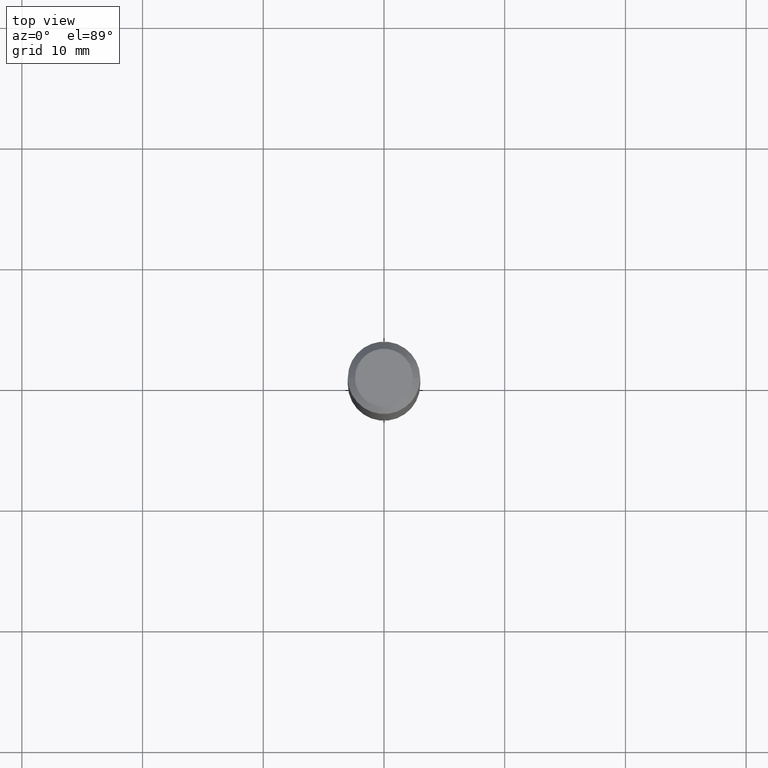
[diagram: clean part render]
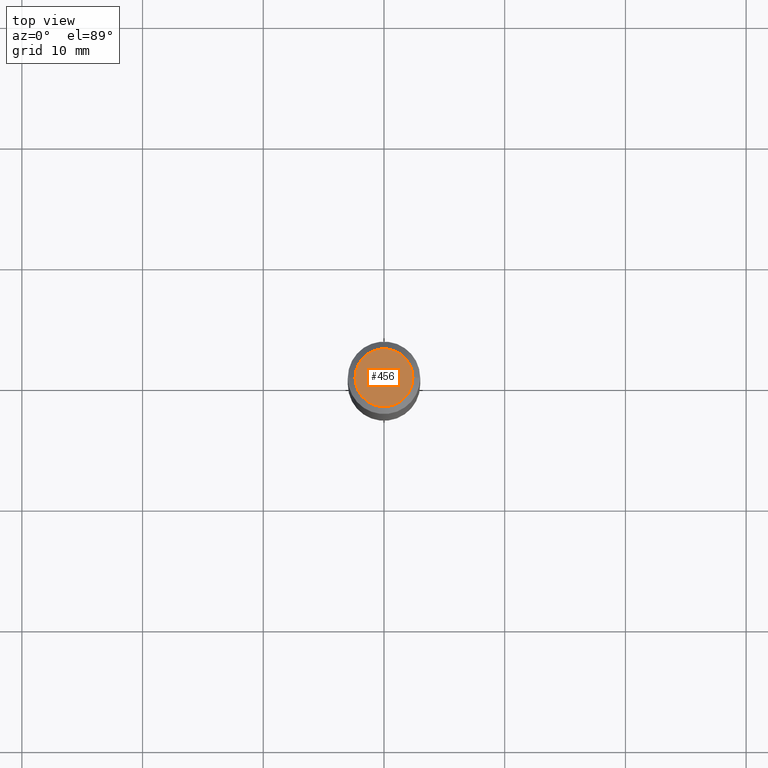
[diagram: same view with one face highlighted and labeled with its STEP entity id]
A machine part, top view. The second image highlights one B-rep face of the part: STEP entity #456.
In plain terms, the highlighted planar face has unit normal (0, -0, -1).
Its self-contained STEP definition (entity closure, byte-faithful):
#5 = EDGE_CURVE ( 'NONE', #223, #299, #167, .T. ) ;
#22 = ORIENTED_EDGE ( 'NONE', *, *, #406, .T. ) ;
#39 = DIRECTION ( 'NONE',  ( -2.445468806185136597E-29, 3.491481338843145583E-15, 1.000000000000000000 ) ) ;
#65 = EDGE_LOOP ( 'NONE', ( #22, #422 ) ) ;
#89 = CARTESIAN_POINT ( 'NONE',  ( -0.09447999999999998066, 7.009847083995354710E-16, -3.085620075132147757E-17 ) ) ;
#94 = CARTESIAN_POINT ( 'NONE',  ( 0.09447999999999998066, -7.704367267948738690E-16, -3.085620075131172158E-17 ) ) ;
#152 = DIRECTION ( 'NONE',  ( -2.445468806185136597E-29, 3.491481338843145583E-15, 1.000000000000000000 ) ) ;
#167 = CIRCLE ( 'NONE', #340, 0.09447999999999998066 ) ;
#223 = VERTEX_POINT ( 'NONE', #94 ) ;
#225 = DIRECTION ( 'NONE',  ( 1.000000000000000000, -6.982962677686267499E-15, 4.875432709231658792E-29 ) ) ;
#241 = CARTESIAN_POINT ( 'NONE',  ( 3.772893820736570314E-46, -5.386692455541008845E-32, -1.542810037565835988E-17 ) ) ;
#265 = PLANE ( 'NONE',  #325 ) ;
#299 = VERTEX_POINT ( 'NONE', #89 ) ;
#304 = FACE_OUTER_BOUND ( 'NONE', #65, .T. ) ;
#305 = CIRCLE ( 'NONE', #465, 0.09447999999999998066 ) ;
#325 = AXIS2_PLACEMENT_3D ( 'NONE', #241, #481, #361 ) ;
#340 = AXIS2_PLACEMENT_3D ( 'NONE', #502, #39, #383 ) ;
#352 = CARTESIAN_POINT ( 'NONE',  ( 7.545787641473140628E-46, -1.077338491108201769E-31, -3.085620075131671975E-17 ) ) ;
#361 = DIRECTION ( 'NONE',  ( -1.000000000000000000, 6.982962677686265922E-15, -4.876176775795935793E-29 ) ) ;
#383 = DIRECTION ( 'NONE',  ( 1.000000000000000000, -6.982962677686267499E-15, 4.875432709231658792E-29 ) ) ;
#406 = EDGE_CURVE ( 'NONE', #299, #223, #305, .T. ) ;
#422 = ORIENTED_EDGE ( 'NONE', *, *, #5, .T. ) ;
#456 = ADVANCED_FACE ( 'NONE', ( #304 ), #265, .F. ) ;
#465 = AXIS2_PLACEMENT_3D ( 'NONE', #352, #152, #225 ) ;
#481 = DIRECTION ( 'NONE',  ( 2.438088387897960049E-29, -3.491481338843145188E-15, -1.000000000000000000 ) ) ;
#502 = CARTESIAN_POINT ( 'NONE',  ( 7.545787641473140628E-46, -1.077338491108201769E-31, -3.085620075131671975E-17 ) ) ;